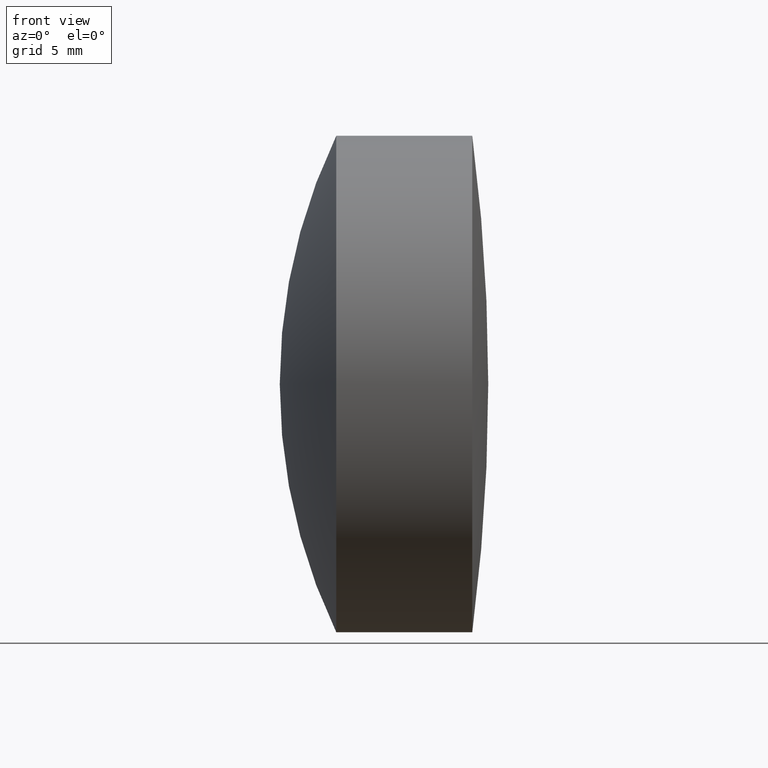
[diagram: clean part render]
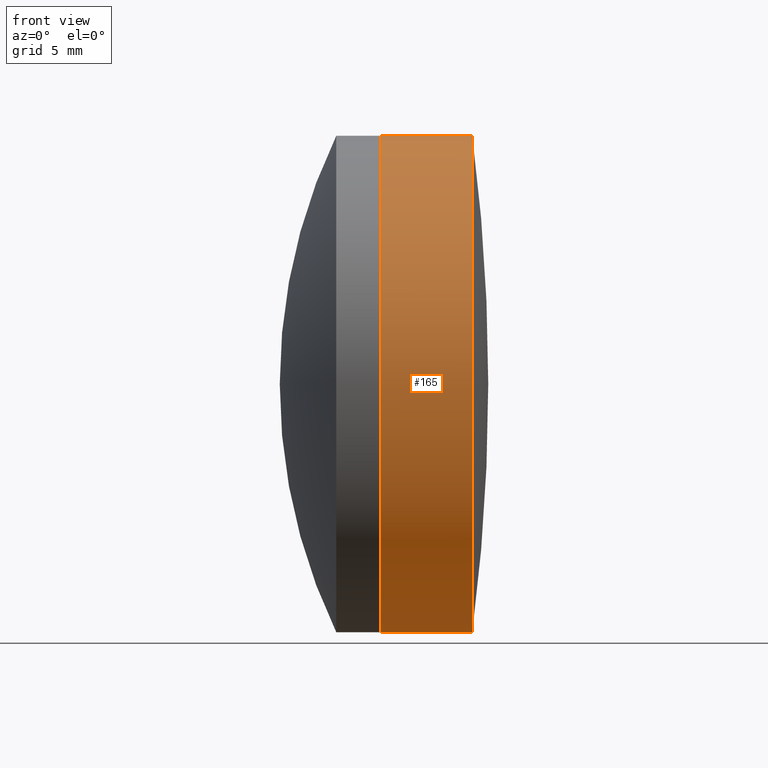
[diagram: same view with one face highlighted and labeled with its STEP entity id]
A machine part, front view. The second image highlights one B-rep face of the part: STEP entity #165.
In plain terms, the highlighted cylindrical surface (partial cylindrical patch) has radius 12.5 mm, axis along (-1, -0, -0).
Its self-contained STEP definition (entity closure, byte-faithful):
#8 = ORIENTED_EDGE ( 'NONE', *, *, #300, .F. ) ;
#9 = DIRECTION ( 'NONE',  ( -1.000000000000000000, -0.0000000000000000000, -0.0000000000000000000 ) ) ;
#30 = CARTESIAN_POINT ( 'NONE',  ( -0.5519199926577972300, 0.0000000000000000000, 0.0000000000000000000 ) ) ;
#34 = VERTEX_POINT ( 'NONE', #283 ) ;
#45 = DIRECTION ( 'NONE',  ( -1.000000000000000000, -0.0000000000000000000, -0.0000000000000000000 ) ) ;
#49 = CYLINDRICAL_SURFACE ( 'NONE', #187, 12.50000000000000400 ) ;
#51 = CARTESIAN_POINT ( 'NONE',  ( -0.5519199926577972300, 1.530808498934191900E-015, -12.50000000000000400 ) ) ;
#54 = VERTEX_POINT ( 'NONE', #173 ) ;
#61 = FACE_OUTER_BOUND ( 'NONE', #223, .T. ) ;
#74 = ORIENTED_EDGE ( 'NONE', *, *, #307, .T. ) ;
#86 = VERTEX_POINT ( 'NONE', #319 ) ;
#90 = CARTESIAN_POINT ( 'NONE',  ( 33.32278150915288300, 0.0000000000000000000, 12.50000000000000900 ) ) ;
#129 = LINE ( 'NONE', #332, #248 ) ;
#131 = DIRECTION ( 'NONE',  ( -1.000000000000000000, -0.0000000000000000000, -0.0000000000000000000 ) ) ;
#136 = CIRCLE ( 'NONE', #205, 12.50000000000000900 ) ;
#152 = CIRCLE ( 'NONE', #265, 12.49999999999999800 ) ;
#165 = ADVANCED_FACE ( 'NONE', ( #61 ), #49, .T. ) ;
#167 = VECTOR ( 'NONE', #312, 1000.000000000000000 ) ;
#173 = CARTESIAN_POINT ( 'NONE',  ( 37.95506700264331100, 1.530808498934191700E-015, -12.49999999999999800 ) ) ;
#187 = AXIS2_PLACEMENT_3D ( 'NONE', #30, #45, #211 ) ;
#205 = AXIS2_PLACEMENT_3D ( 'NONE', #279, #131, #276 ) ;
#207 = ORIENTED_EDGE ( 'NONE', *, *, #320, .T. ) ;
#211 = DIRECTION ( 'NONE',  ( 0.0000000000000000000, 0.0000000000000000000, 1.000000000000000000 ) ) ;
#223 = EDGE_LOOP ( 'NONE', ( #8, #207, #74, #325 ) ) ;
#229 = LINE ( 'NONE', #51, #167 ) ;
#231 = DIRECTION ( 'NONE',  ( 0.0000000000000000000, 0.0000000000000000000, 1.000000000000000000 ) ) ;
#248 = VECTOR ( 'NONE', #9, 1000.000000000000000 ) ;
#251 = DIRECTION ( 'NONE',  ( -1.000000000000000000, -0.0000000000000000000, -0.0000000000000000000 ) ) ;
#265 = AXIS2_PLACEMENT_3D ( 'NONE', #295, #251, #231 ) ;
#274 = EDGE_CURVE ( 'NONE', #86, #277, #136, .T. ) ;
#276 = DIRECTION ( 'NONE',  ( 0.0000000000000000000, 0.0000000000000000000, 1.000000000000000000 ) ) ;
#277 = VERTEX_POINT ( 'NONE', #90 ) ;
#279 = CARTESIAN_POINT ( 'NONE',  ( 33.32278150915288300, 0.0000000000000000000, 0.0000000000000000000 ) ) ;
#283 = CARTESIAN_POINT ( 'NONE',  ( 37.95506700264331100, 0.0000000000000000000, 12.49999999999999800 ) ) ;
#295 = CARTESIAN_POINT ( 'NONE',  ( 37.95506700264331100, 0.0000000000000000000, 0.0000000000000000000 ) ) ;
#300 = EDGE_CURVE ( 'NONE', #54, #86, #229, .T. ) ;
#307 = EDGE_CURVE ( 'NONE', #34, #277, #129, .T. ) ;
#312 = DIRECTION ( 'NONE',  ( -1.000000000000000000, -0.0000000000000000000, -0.0000000000000000000 ) ) ;
#319 = CARTESIAN_POINT ( 'NONE',  ( 33.32278150915288300, 1.530808498934192700E-015, -12.50000000000000900 ) ) ;
#320 = EDGE_CURVE ( 'NONE', #54, #34, #152, .T. ) ;
#325 = ORIENTED_EDGE ( 'NONE', *, *, #274, .F. ) ;
#332 = CARTESIAN_POINT ( 'NONE',  ( -0.5519199926577972300, 0.0000000000000000000, 12.50000000000000400 ) ) ;